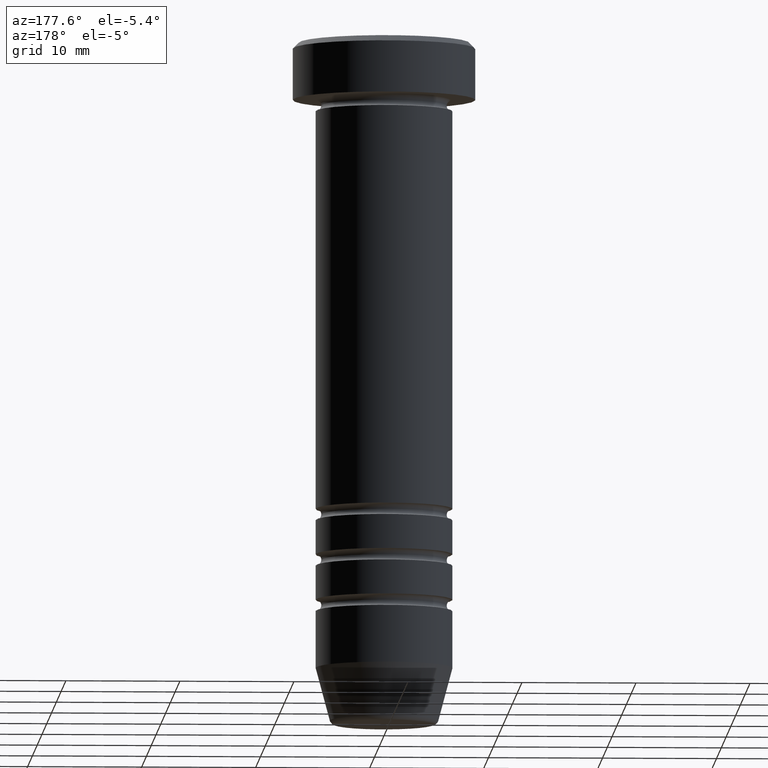
[diagram: clean part render]
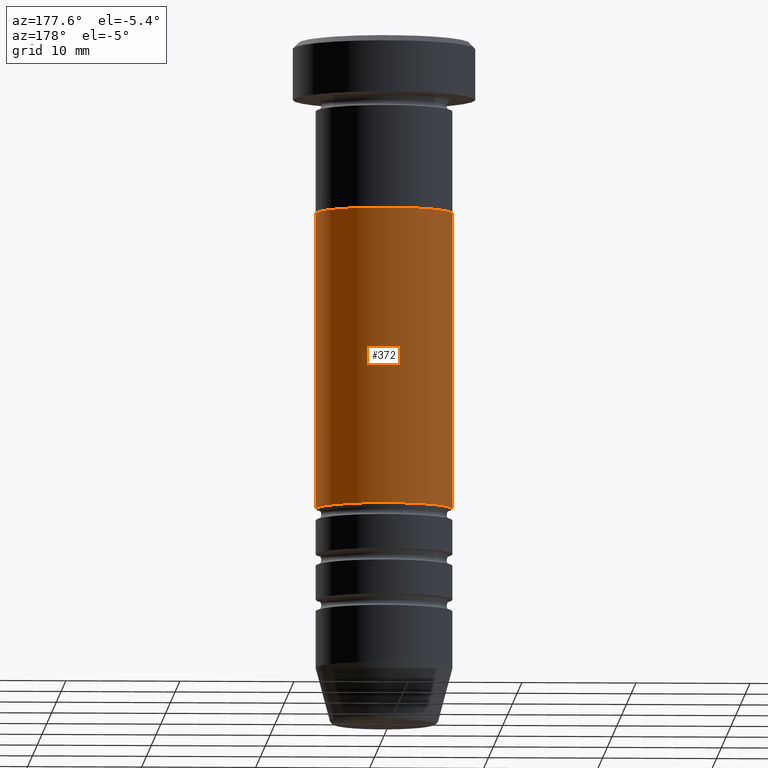
[diagram: same view with one face highlighted and labeled with its STEP entity id]
A machine part, auxiliary view. The second image highlights one B-rep face of the part: STEP entity #372.
In plain terms, the highlighted cylindrical surface (partial cylindrical patch) has radius 6 mm, axis along (-0, -0, 1).
Its self-contained STEP definition (entity closure, byte-faithful):
#5 = EDGE_CURVE ( 'NONE', #756, #404, #766, .T. ) ;
#54 = CARTESIAN_POINT ( 'NONE',  ( -6.000000000000000888, 7.347880794884120722E-16, -15.00000000000000000 ) ) ;
#114 = EDGE_CURVE ( 'NONE', #652, #404, #651, .T. ) ;
#131 = LINE ( 'NONE', #536, #1005 ) ;
#213 = CARTESIAN_POINT ( 'NONE',  ( 6.000000000000000000, 0.000000000000000000, -15.00000000000000000 ) ) ;
#219 = CARTESIAN_POINT ( 'NONE',  ( -5.999999999999996447, 7.347880794884115792E-16, 0.000000000000000000 ) ) ;
#221 = DIRECTION ( 'NONE',  ( -0.000000000000000000, -0.000000000000000000, 1.000000000000000000 ) ) ;
#247 = DIRECTION ( 'NONE',  ( 1.000000000000000000, 0.000000000000000000, 0.000000000000000000 ) ) ;
#256 = DIRECTION ( 'NONE',  ( 1.000000000000000000, 0.000000000000000000, 0.000000000000000000 ) ) ;
#277 = VECTOR ( 'NONE', #312, 1000.000000000000000 ) ;
#297 = EDGE_LOOP ( 'NONE', ( #731, #1043, #336, #832 ) ) ;
#298 = CARTESIAN_POINT ( 'NONE',  ( 5.999999999999992895, 0.000000000000000000, -41.00000000000000711 ) ) ;
#303 = DIRECTION ( 'NONE',  ( -0.000000000000000000, -0.000000000000000000, 1.000000000000000000 ) ) ;
#312 = DIRECTION ( 'NONE',  ( -0.000000000000000000, -0.000000000000000000, 1.000000000000000000 ) ) ;
#336 = ORIENTED_EDGE ( 'NONE', *, *, #5, .F. ) ;
#341 = AXIS2_PLACEMENT_3D ( 'NONE', #896, #991, #256 ) ;
#372 = ADVANCED_FACE ( 'NONE', ( #458 ), #448, .T. ) ;
#404 = VERTEX_POINT ( 'NONE', #54 ) ;
#428 = CIRCLE ( 'NONE', #531, 5.999999999999992895 ) ;
#448 = CYLINDRICAL_SURFACE ( 'NONE', #785, 5.999999999999996447 ) ;
#458 = FACE_OUTER_BOUND ( 'NONE', #297, .T. ) ;
#491 = DIRECTION ( 'NONE',  ( -0.000000000000000000, -0.000000000000000000, 1.000000000000000000 ) ) ;
#513 = EDGE_CURVE ( 'NONE', #669, #756, #131, .T. ) ;
#531 = AXIS2_PLACEMENT_3D ( 'NONE', #732, #491, #247 ) ;
#536 = CARTESIAN_POINT ( 'NONE',  ( 5.999999999999996447, 0.000000000000000000, 0.000000000000000000 ) ) ;
#558 = DIRECTION ( 'NONE',  ( 1.000000000000000000, 0.000000000000000000, 0.000000000000000000 ) ) ;
#588 = EDGE_CURVE ( 'NONE', #669, #652, #428, .T. ) ;
#651 = LINE ( 'NONE', #219, #277 ) ;
#652 = VERTEX_POINT ( 'NONE', #1036 ) ;
#669 = VERTEX_POINT ( 'NONE', #298 ) ;
#731 = ORIENTED_EDGE ( 'NONE', *, *, #588, .T. ) ;
#732 = CARTESIAN_POINT ( 'NONE',  ( 0.000000000000000000, 0.000000000000000000, -41.00000000000000711 ) ) ;
#756 = VERTEX_POINT ( 'NONE', #213 ) ;
#766 = CIRCLE ( 'NONE', #341, 6.000000000000000000 ) ;
#785 = AXIS2_PLACEMENT_3D ( 'NONE', #954, #221, #558 ) ;
#832 = ORIENTED_EDGE ( 'NONE', *, *, #513, .F. ) ;
#896 = CARTESIAN_POINT ( 'NONE',  ( 0.000000000000000000, 0.000000000000000000, -15.00000000000000000 ) ) ;
#954 = CARTESIAN_POINT ( 'NONE',  ( 0.000000000000000000, 0.000000000000000000, 0.000000000000000000 ) ) ;
#991 = DIRECTION ( 'NONE',  ( -0.000000000000000000, -0.000000000000000000, 1.000000000000000000 ) ) ;
#1005 = VECTOR ( 'NONE', #303, 1000.000000000000000 ) ;
#1036 = CARTESIAN_POINT ( 'NONE',  ( -5.999999999999992895, 7.347880794884112834E-16, -41.00000000000000711 ) ) ;
#1043 = ORIENTED_EDGE ( 'NONE', *, *, #114, .T. ) ;